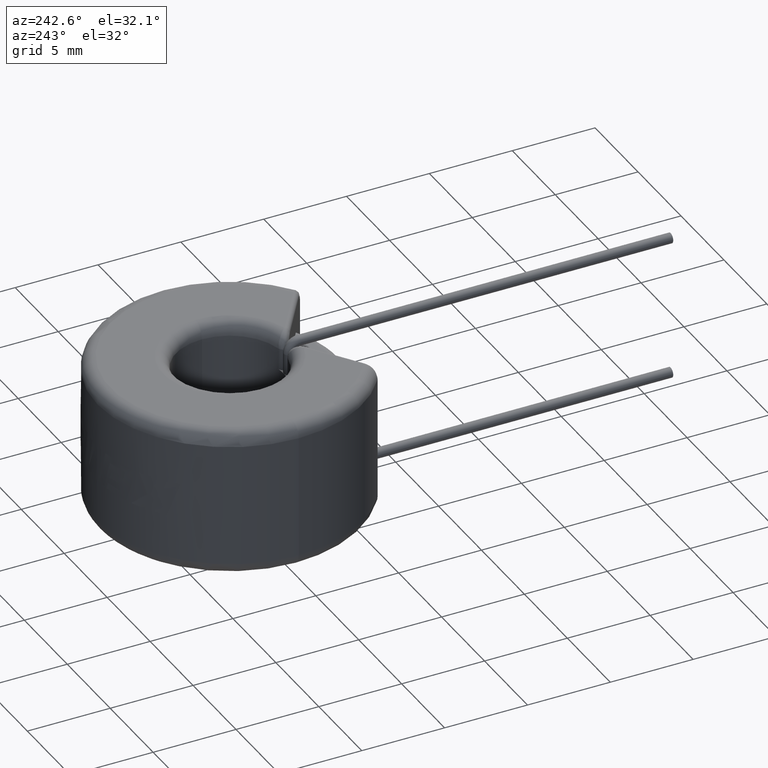
[diagram: clean part render]
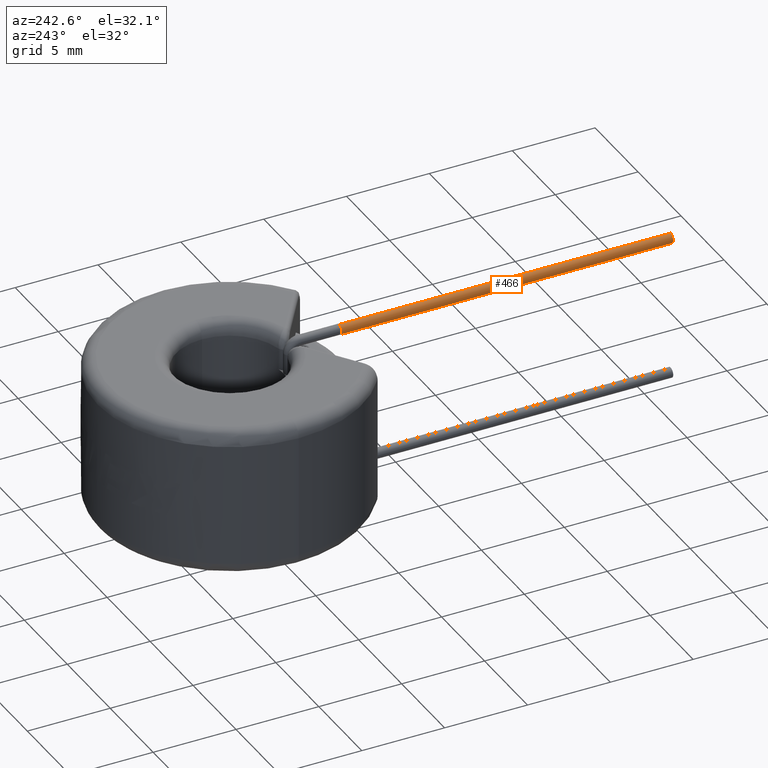
[diagram: same view with one face highlighted and labeled with its STEP entity id]
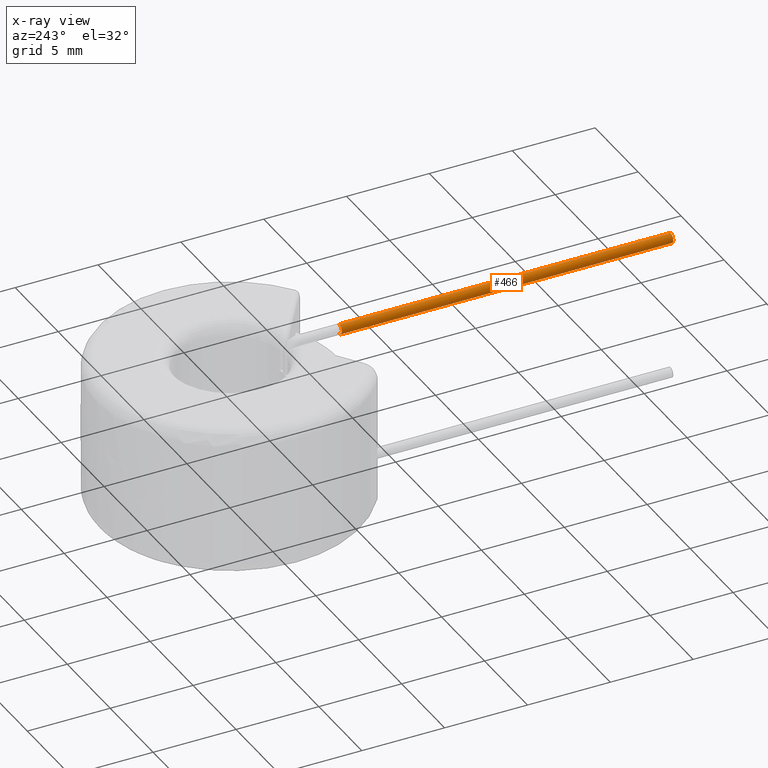
[diagram: x-ray of the same camera — body ghosted, the highlighted face saturated]
A machine part, auxiliary view. The second image highlights one B-rep face of the part: STEP entity #466.
The next image is the same camera in x-ray: the body ghosted, the highlighted face saturated — about 0% of this face is hidden behind the body in this view.
In plain terms, the highlighted cylindrical surface (edge-blend (fillet) strip) has radius 0.3 mm, axis along (0, -1, -0).
Its self-contained STEP definition (entity closure, byte-faithful):
#449 = CYLINDRICAL_SURFACE ( 'NONE', #3587, 0.2999999999999999334 ) ;
#466 = ADVANCED_FACE ( 'NONE', ( #1989 ), #449, .T. ) ;
#593 = AXIS2_PLACEMENT_3D ( 'NONE', #1171, #3791, #3464 ) ;
#650 = CARTESIAN_POINT ( 'NONE',  ( 0.0000000000000000000, -4.150000000000001243, 4.249999999999998224 ) ) ;
#655 = CARTESIAN_POINT ( 'NONE',  ( 3.673940397442058882E-17, -4.150000000000001243, 4.549999999999998934 ) ) ;
#687 = DIRECTION ( 'NONE',  ( 0.0000000000000000000, -1.000000000000000000, -1.545410669021654585E-16 ) ) ;
#783 = VERTEX_POINT ( 'NONE', #2141 ) ;
#926 = ORIENTED_EDGE ( 'NONE', *, *, #3028, .F. ) ;
#1059 = CARTESIAN_POINT ( 'NONE',  ( 0.0000000000000000000, -6.600000000000004974, 4.249999999999998224 ) ) ;
#1171 = CARTESIAN_POINT ( 'NONE',  ( 0.0000000000000000000, -26.59999999999999787, 4.249999999999994671 ) ) ;
#1329 = VECTOR ( 'NONE', #687, 1000.000000000000000 ) ;
#1394 = DIRECTION ( 'NONE',  ( 0.0000000000000000000, 0.0000000000000000000, 1.000000000000000000 ) ) ;
#1722 = EDGE_CURVE ( 'NONE', #3516, #3408, #2023, .T. ) ;
#1803 = ORIENTED_EDGE ( 'NONE', *, *, #4059, .F. ) ;
#1837 = LINE ( 'NONE', #2342, #2546 ) ;
#1842 = AXIS2_PLACEMENT_3D ( 'NONE', #1059, #3293, #1394 ) ;
#1985 = DIRECTION ( 'NONE',  ( 0.0000000000000000000, -1.000000000000000000, -1.545410669021654585E-16 ) ) ;
#1989 = FACE_OUTER_BOUND ( 'NONE', #2207, .T. ) ;
#2023 = CIRCLE ( 'NONE', #593, 0.2999999999999999334 ) ;
#2038 = ORIENTED_EDGE ( 'NONE', *, *, #4182, .T. ) ;
#2141 = CARTESIAN_POINT ( 'NONE',  ( 3.673940397442081685E-17, -6.600000000000004974, 4.549999999999998934 ) ) ;
#2207 = EDGE_LOOP ( 'NONE', ( #1803, #926, #2038, #3298 ) ) ;
#2229 = CARTESIAN_POINT ( 'NONE',  ( 0.0000000000000000000, -6.600000000000004974, 3.949999999999998845 ) ) ;
#2246 = CIRCLE ( 'NONE', #1842, 0.2999999999999999334 ) ;
#2342 = CARTESIAN_POINT ( 'NONE',  ( 0.0000000000000000000, -4.150000000000001243, 3.949999999999998845 ) ) ;
#2546 = VECTOR ( 'NONE', #3366, 1000.000000000000000 ) ;
#2679 = DIRECTION ( 'NONE',  ( 0.0000000000000000000, 0.0000000000000000000, -1.000000000000000000 ) ) ;
#3028 = EDGE_CURVE ( 'NONE', #3213, #783, #2246, .T. ) ;
#3213 = VERTEX_POINT ( 'NONE', #2229 ) ;
#3293 = DIRECTION ( 'NONE',  ( -0.0000000000000000000, 1.000000000000000000, 0.0000000000000000000 ) ) ;
#3298 = ORIENTED_EDGE ( 'NONE', *, *, #1722, .T. ) ;
#3312 = CARTESIAN_POINT ( 'NONE',  ( 3.673940397442059498E-17, -26.59999999999999787, 4.549999999999995381 ) ) ;
#3366 = DIRECTION ( 'NONE',  ( 0.0000000000000000000, -1.000000000000000000, -1.545410669021654585E-16 ) ) ;
#3408 = VERTEX_POINT ( 'NONE', #3312 ) ;
#3464 = DIRECTION ( 'NONE',  ( 0.0000000000000000000, 0.0000000000000000000, 1.000000000000000000 ) ) ;
#3516 = VERTEX_POINT ( 'NONE', #3861 ) ;
#3587 = AXIS2_PLACEMENT_3D ( 'NONE', #650, #1985, #2679 ) ;
#3791 = DIRECTION ( 'NONE',  ( 0.0000000000000000000, 1.000000000000000000, 0.0000000000000000000 ) ) ;
#3861 = CARTESIAN_POINT ( 'NONE',  ( 0.0000000000000000000, -26.59999999999999787, 3.949999999999995293 ) ) ;
#4059 = EDGE_CURVE ( 'NONE', #783, #3408, #4117, .T. ) ;
#4117 = LINE ( 'NONE', #655, #1329 ) ;
#4182 = EDGE_CURVE ( 'NONE', #3213, #3516, #1837, .T. ) ;